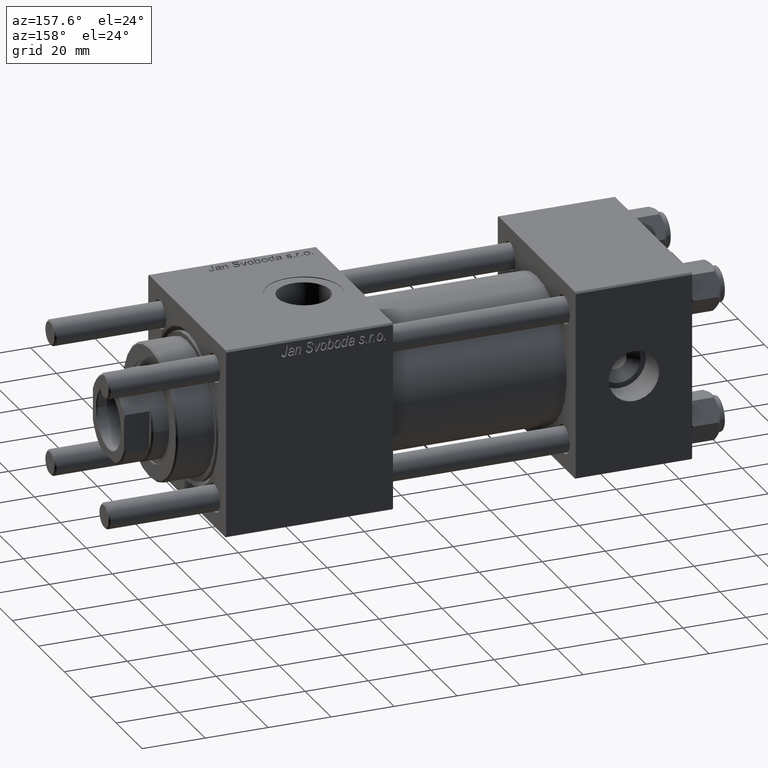
[diagram: clean part render]
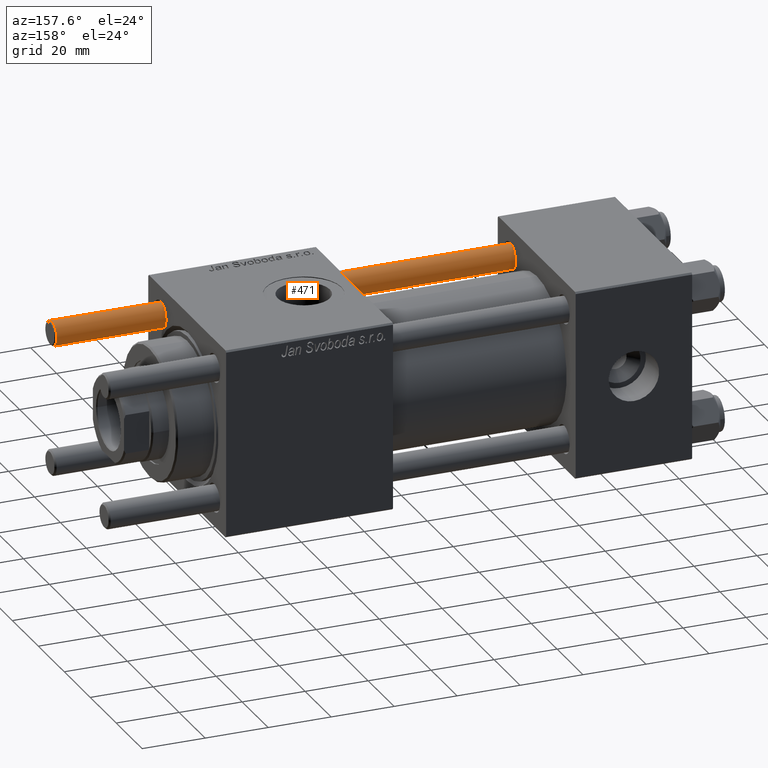
[diagram: same view with one face highlighted and labeled with its STEP entity id]
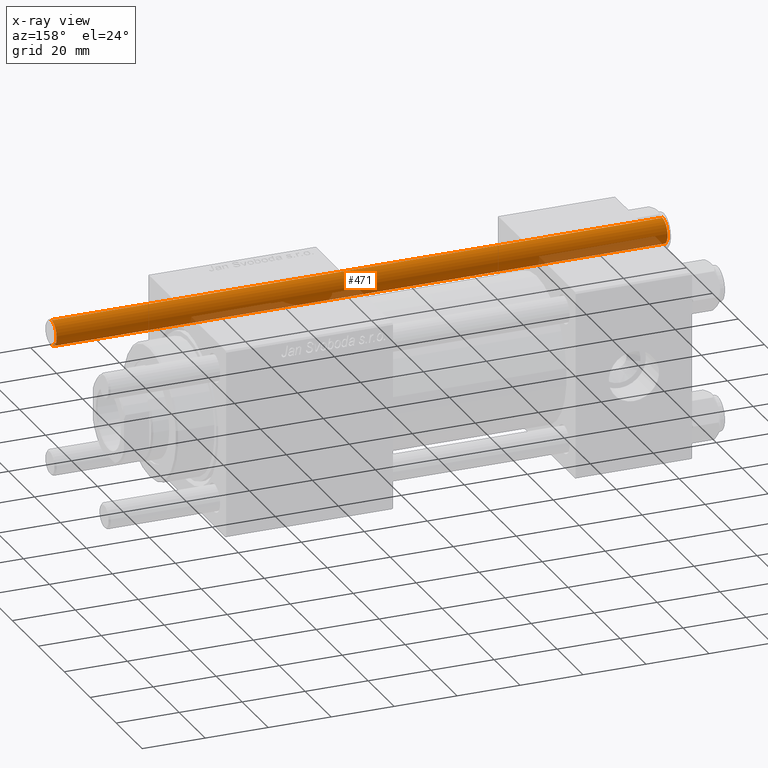
[diagram: x-ray of the same camera — body ghosted, the highlighted face saturated]
A machine part, auxiliary view. The second image highlights one B-rep face of the part: STEP entity #471.
The next image is the same camera in x-ray: the body ghosted, the highlighted face saturated — about 12% of this face is hidden behind the body in this view.
In plain terms, the highlighted cylindrical surface (edge-blend (fillet) strip) has radius 4 mm, axis along (-1, 0, -0).
Its self-contained STEP definition (entity closure, byte-faithful):
#471 = ADVANCED_FACE ( 'NONE', ( #9792 ), #54501, .T. ) ;
#2406 = ORIENTED_EDGE ( 'NONE', *, *, #5249, .T. ) ;
#2433 = EDGE_CURVE ( 'NONE', #22576, #23066, #48038, .T. ) ;
#5056 = DIRECTION ( 'NONE',  ( -1.000000000000000000, 0.000000000000000000, 0.000000000000000000 ) ) ;
#5249 = EDGE_CURVE ( 'NONE', #55629, #22576, #31771, .T. ) ;
#6744 = DIRECTION ( 'NONE',  ( 0.000000000000000000, 0.000000000000000000, -1.000000000000000000 ) ) ;
#7311 = CARTESIAN_POINT ( 'NONE',  ( 4.000000000000000000, 4.898587196589412829E-16, 194.5000000000000568 ) ) ;
#9255 = DIRECTION ( 'NONE',  ( -0.000000000000000000, -0.000000000000000000, -1.000000000000000000 ) ) ;
#9792 = FACE_OUTER_BOUND ( 'NONE', #23872, .T. ) ;
#10896 = CARTESIAN_POINT ( 'NONE',  ( 0.000000000000000000, 0.000000000000000000, 194.5000000000000568 ) ) ;
#11226 = VECTOR ( 'NONE', #9255, 1000.000000000000000 ) ;
#11980 = CARTESIAN_POINT ( 'NONE',  ( 4.000000000000000000, 4.898587196589412829E-16, 0.5000000000000004441 ) ) ;
#15462 = EDGE_CURVE ( 'NONE', #28871, #55629, #26562, .T. ) ;
#20090 = DIRECTION ( 'NONE',  ( 1.000000000000000000, 0.000000000000000000, 0.000000000000000000 ) ) ;
#20645 = ORIENTED_EDGE ( 'NONE', *, *, #2433, .T. ) ;
#20703 = LINE ( 'NONE', #47900, #29999 ) ;
#22576 = VERTEX_POINT ( 'NONE', #43566 ) ;
#23066 = VERTEX_POINT ( 'NONE', #11980 ) ;
#23148 = CARTESIAN_POINT ( 'NONE',  ( 0.000000000000000000, 0.000000000000000000, 195.0000000000000000 ) ) ;
#23872 = EDGE_LOOP ( 'NONE', ( #50309, #39113, #2406, #20645 ) ) ;
#26562 = CIRCLE ( 'NONE', #39779, 4.000000000000000000 ) ;
#28871 = VERTEX_POINT ( 'NONE', #7311 ) ;
#29999 = VECTOR ( 'NONE', #38455, 1000.000000000000000 ) ;
#31771 = LINE ( 'NONE', #49814, #11226 ) ;
#37660 = AXIS2_PLACEMENT_3D ( 'NONE', #38925, #43650, #48072 ) ;
#38455 = DIRECTION ( 'NONE',  ( -0.000000000000000000, -0.000000000000000000, -1.000000000000000000 ) ) ;
#38925 = CARTESIAN_POINT ( 'NONE',  ( 0.000000000000000000, 0.000000000000000000, 0.5000000000000004441 ) ) ;
#39113 = ORIENTED_EDGE ( 'NONE', *, *, #15462, .T. ) ;
#39779 = AXIS2_PLACEMENT_3D ( 'NONE', #10896, #6744, #20090 ) ;
#41187 = DIRECTION ( 'NONE',  ( -0.000000000000000000, -0.000000000000000000, -1.000000000000000000 ) ) ;
#43566 = CARTESIAN_POINT ( 'NONE',  ( -4.000000000000000000, 0.000000000000000000, 0.5000000000000004441 ) ) ;
#43650 = DIRECTION ( 'NONE',  ( -0.000000000000000000, -0.000000000000000000, 1.000000000000000000 ) ) ;
#46293 = EDGE_CURVE ( 'NONE', #28871, #23066, #20703, .T. ) ;
#47900 = CARTESIAN_POINT ( 'NONE',  ( 4.000000000000000000, 4.898587196589412829E-16, 195.0000000000000000 ) ) ;
#47989 = AXIS2_PLACEMENT_3D ( 'NONE', #23148, #41187, #5056 ) ;
#48038 = CIRCLE ( 'NONE', #37660, 4.000000000000000000 ) ;
#48072 = DIRECTION ( 'NONE',  ( 1.000000000000000000, 0.000000000000000000, 0.000000000000000000 ) ) ;
#49657 = CARTESIAN_POINT ( 'NONE',  ( -4.000000000000000000, 0.000000000000000000, 194.5000000000000568 ) ) ;
#49814 = CARTESIAN_POINT ( 'NONE',  ( -4.000000000000000000, 0.000000000000000000, 195.0000000000000000 ) ) ;
#50309 = ORIENTED_EDGE ( 'NONE', *, *, #46293, .F. ) ;
#54501 = CYLINDRICAL_SURFACE ( 'NONE', #47989, 4.000000000000000000 ) ;
#55629 = VERTEX_POINT ( 'NONE', #49657 ) ;